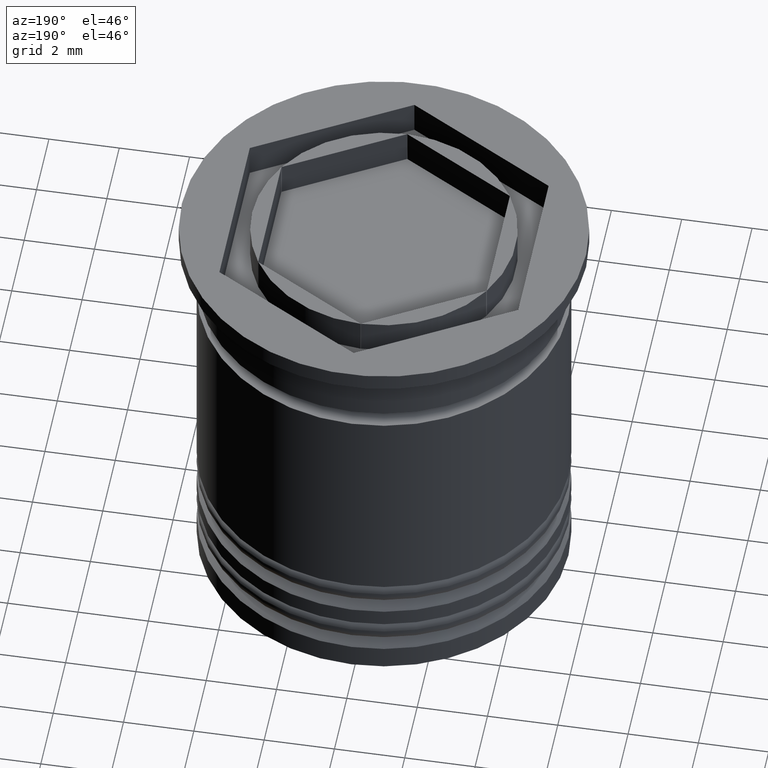
[diagram: clean part render]
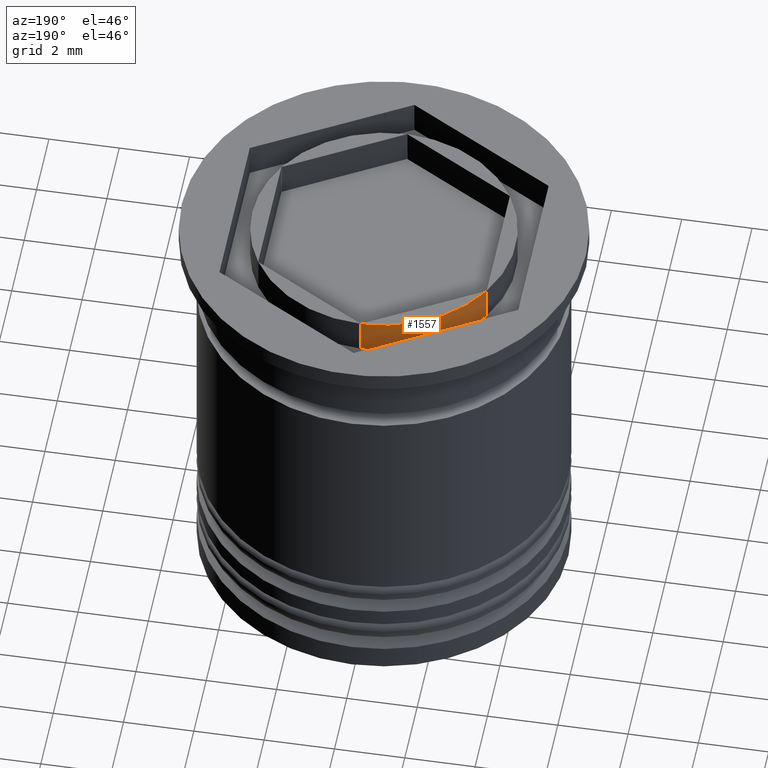
[diagram: same view with one face highlighted and labeled with its STEP entity id]
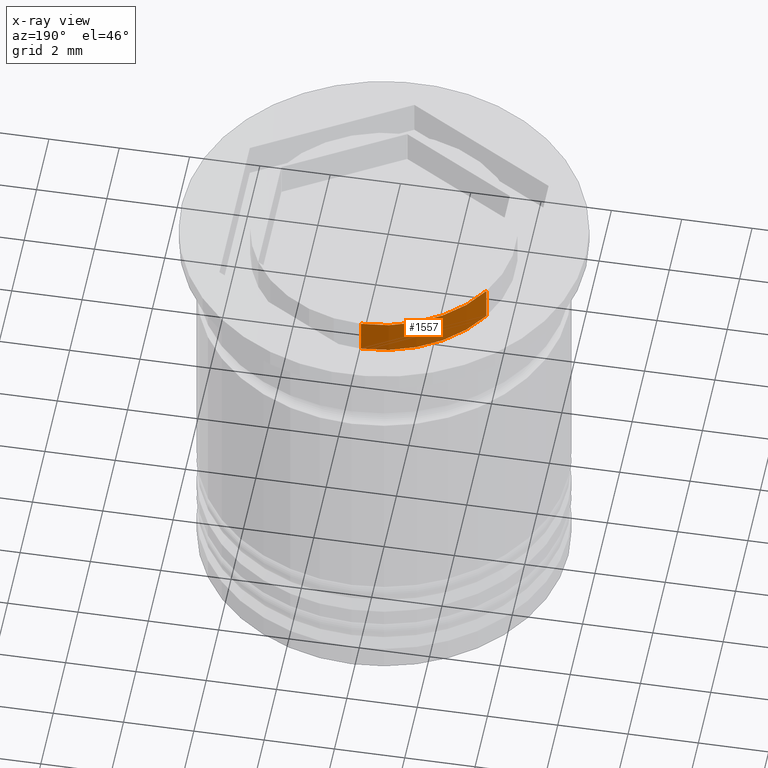
[diagram: x-ray of the same camera — body ghosted, the highlighted face saturated]
A machine part, auxiliary view. The second image highlights one B-rep face of the part: STEP entity #1557.
The next image is the same camera in x-ray: the body ghosted, the highlighted face saturated — about 0% of this face is hidden behind the body in this view.
In plain terms, the highlighted cylindrical surface (partial cylindrical patch) has radius 3.75 mm, axis along (-0, -0, 1).
Its self-contained STEP definition (entity closure, byte-faithful):
#203 = AXIS2_PLACEMENT_3D ( 'NONE', #295, #1820, #1811 ) ;
#229 = VECTOR ( 'NONE', #1406, 1000.000000000000000 ) ;
#254 = CYLINDRICAL_SURFACE ( 'NONE', #203, 3.750000000000000444 ) ;
#295 = CARTESIAN_POINT ( 'NONE',  ( 0.000000000000000000, 0.000000000000000000, -1.000000000000000000 ) ) ;
#338 = AXIS2_PLACEMENT_3D ( 'NONE', #418, #1493, #1048 ) ;
#418 = CARTESIAN_POINT ( 'NONE',  ( 0.000000000000000000, 0.000000000000000000, -1.000000000000000000 ) ) ;
#467 = CIRCLE ( 'NONE', #884, 3.750000000000000444 ) ;
#510 = ORIENTED_EDGE ( 'NONE', *, *, #1041, .F. ) ;
#615 = CARTESIAN_POINT ( 'NONE',  ( -0.004814825398034354616, 3.749996908992910605, -1.000000000000000888 ) ) ;
#714 = ORIENTED_EDGE ( 'NONE', *, *, #1837, .T. ) ;
#748 = DIRECTION ( 'NONE',  ( 1.000000000000000000, 0.000000000000000000, 0.000000000000000000 ) ) ;
#796 = LINE ( 'NONE', #1880, #229 ) ;
#884 = AXIS2_PLACEMENT_3D ( 'NONE', #1227, #1656, #748 ) ;
#887 = ORIENTED_EDGE ( 'NONE', *, *, #1591, .F. ) ;
#947 = CIRCLE ( 'NONE', #338, 3.750000000000000444 ) ;
#1041 = EDGE_CURVE ( 'NONE', #1468, #1538, #796, .T. ) ;
#1048 = DIRECTION ( 'NONE',  ( 1.000000000000000000, 0.000000000000000000, 0.000000000000000000 ) ) ;
#1106 = ORIENTED_EDGE ( 'NONE', *, *, #1879, .F. ) ;
#1149 = CARTESIAN_POINT ( 'NONE',  ( -3.245185174601964651, 1.879168215605940162, 0.000000000000000000 ) ) ;
#1196 = DIRECTION ( 'NONE',  ( -0.000000000000000000, -0.000000000000000000, 1.000000000000000000 ) ) ;
#1227 = CARTESIAN_POINT ( 'NONE',  ( 0.000000000000000000, 0.000000000000000000, 0.000000000000000000 ) ) ;
#1302 = EDGE_LOOP ( 'NONE', ( #510, #887, #1106, #714 ) ) ;
#1406 = DIRECTION ( 'NONE',  ( 0.000000000000000000, 0.000000000000000000, -1.000000000000000000 ) ) ;
#1434 = VECTOR ( 'NONE', #1196, 1000.000000000000000 ) ;
#1439 = VERTEX_POINT ( 'NONE', #1484 ) ;
#1468 = VERTEX_POINT ( 'NONE', #1149 ) ;
#1484 = CARTESIAN_POINT ( 'NONE',  ( -0.004814825398034763143, 3.749996908992911493, 0.000000000000000000 ) ) ;
#1493 = DIRECTION ( 'NONE',  ( -0.000000000000000000, 0.000000000000000000, 1.000000000000000000 ) ) ;
#1538 = VERTEX_POINT ( 'NONE', #1792 ) ;
#1557 = ADVANCED_FACE ( 'NONE', ( #1633 ), #254, .T. ) ;
#1591 = EDGE_CURVE ( 'NONE', #1439, #1468, #467, .T. ) ;
#1633 = FACE_OUTER_BOUND ( 'NONE', #1302, .T. ) ;
#1656 = DIRECTION ( 'NONE',  ( -0.000000000000000000, 0.000000000000000000, 1.000000000000000000 ) ) ;
#1660 = CARTESIAN_POINT ( 'NONE',  ( -0.004814825398034546303, 3.749996908992911049, -1.000000000000000000 ) ) ;
#1724 = VERTEX_POINT ( 'NONE', #615 ) ;
#1790 = LINE ( 'NONE', #1660, #1434 ) ;
#1792 = CARTESIAN_POINT ( 'NONE',  ( -3.245185174601965539, 1.879168215605939718, -1.000000000000000888 ) ) ;
#1811 = DIRECTION ( 'NONE',  ( 1.000000000000000000, 0.000000000000000000, 0.000000000000000000 ) ) ;
#1820 = DIRECTION ( 'NONE',  ( -0.000000000000000000, -0.000000000000000000, 1.000000000000000000 ) ) ;
#1837 = EDGE_CURVE ( 'NONE', #1724, #1538, #947, .T. ) ;
#1879 = EDGE_CURVE ( 'NONE', #1724, #1439, #1790, .T. ) ;
#1880 = CARTESIAN_POINT ( 'NONE',  ( -3.245185174601965095, 1.879168215605940384, -1.000000000000000000 ) ) ;